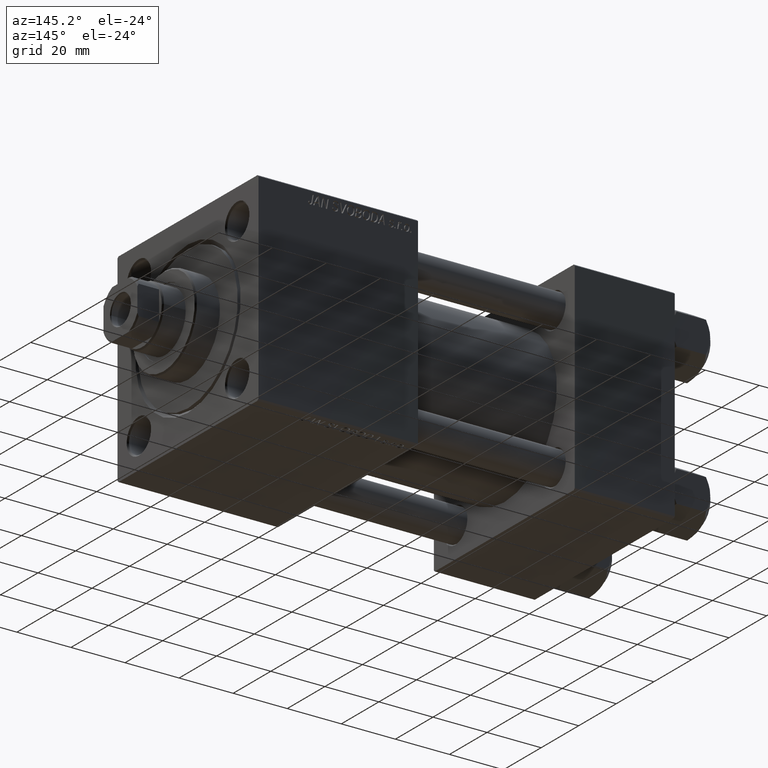
[diagram: clean part render]
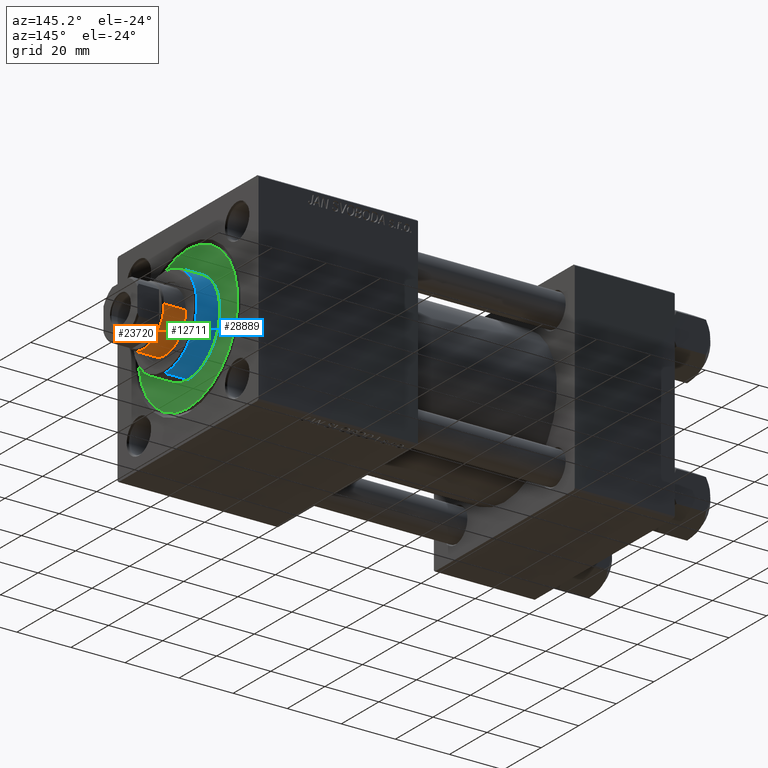
[diagram: same view with three faces highlighted in distinct colors, each labeled with its STEP entity id]
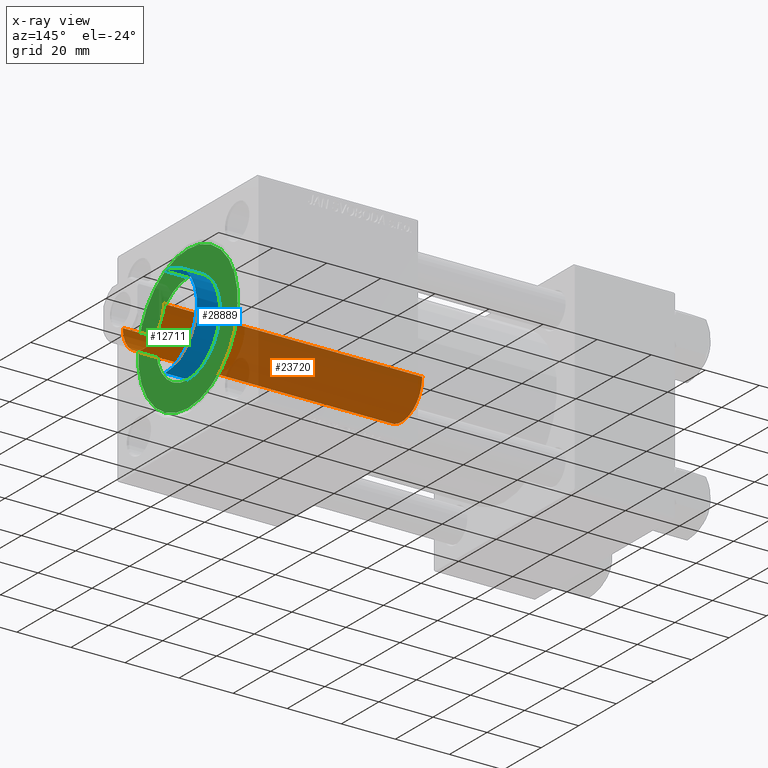
[diagram: x-ray of the same camera — body ghosted, the three highlighted faces saturated]
A machine part, auxiliary view with three faces highlighted in distinct colors.
The next image is the same camera in x-ray (body ghosted, the three faces saturated) — at least one of them is partly hidden behind the body in this view.
Their STEP definitions:

[orange] entity #23720 — the highlighted cylindrical surface (edge-blend (fillet) strip) has radius 11 mm, axis along (-1, 0, 0).
#178 = CARTESIAN_POINT ( 'NONE',  ( 11.00000000000000000, 1.347111479062088405E-15, 133.5000000000000000 ) ) ;
#752 = ORIENTED_EDGE ( 'NONE', *, *, #803, .T. ) ;
#803 = EDGE_CURVE ( 'NONE', #8740, #9536, #11507, .T. ) ;
#2889 = CARTESIAN_POINT ( 'NONE',  ( 0.000000000000000000, 0.000000000000000000, 134.0000000000000000 ) ) ;
#4452 = CIRCLE ( 'NONE', #16622, 11.00000000000000000 ) ;
#5380 = DIRECTION ( 'NONE',  ( 0.000000000000000000, 0.000000000000000000, 1.000000000000000000 ) ) ;
#5625 = DIRECTION ( 'NONE',  ( 1.000000000000000000, 0.000000000000000000, 0.000000000000000000 ) ) ;
#5864 = VERTEX_POINT ( 'NONE', #44850 ) ;
#7151 = CIRCLE ( 'NONE', #35525, 11.00000000000000000 ) ;
#8203 = VECTOR ( 'NONE', #23950, 1000.000000000000000 ) ;
#8740 = VERTEX_POINT ( 'NONE', #178 ) ;
#9536 = VERTEX_POINT ( 'NONE', #15475 ) ;
#11122 = CARTESIAN_POINT ( 'NONE',  ( -11.00000000000000000, 0.000000000000000000, 134.0000000000000000 ) ) ;
#11507 = LINE ( 'NONE', #12512, #8203 ) ;
#11846 = EDGE_CURVE ( 'NONE', #34014, #8740, #4452, .T. ) ;
#12512 = CARTESIAN_POINT ( 'NONE',  ( 11.00000000000000000, 1.347111479062088405E-15, 134.0000000000000000 ) ) ;
#12862 = VECTOR ( 'NONE', #30166, 1000.000000000000000 ) ;
#15475 = CARTESIAN_POINT ( 'NONE',  ( 11.00000000000000000, 1.347111479062088405E-15, 38.00000000000000000 ) ) ;
#16622 = AXIS2_PLACEMENT_3D ( 'NONE', #34493, #41608, #18747 ) ;
#16798 = CARTESIAN_POINT ( 'NONE',  ( 0.000000000000000000, 0.000000000000000000, 38.00000000000000000 ) ) ;
#18747 = DIRECTION ( 'NONE',  ( 1.000000000000000000, 0.000000000000000000, 0.000000000000000000 ) ) ;
#21250 = CARTESIAN_POINT ( 'NONE',  ( -11.00000000000000000, 0.000000000000000000, 133.5000000000000000 ) ) ;
#22388 = EDGE_LOOP ( 'NONE', ( #29962, #752, #33348, #46802 ) ) ;
#23720 = ADVANCED_FACE ( 'NONE', ( #32872 ), #41219, .T. ) ;
#23950 = DIRECTION ( 'NONE',  ( -0.000000000000000000, -0.000000000000000000, -1.000000000000000000 ) ) ;
#26854 = LINE ( 'NONE', #11122, #12862 ) ;
#29962 = ORIENTED_EDGE ( 'NONE', *, *, #11846, .T. ) ;
#30166 = DIRECTION ( 'NONE',  ( -0.000000000000000000, -0.000000000000000000, -1.000000000000000000 ) ) ;
#32872 = FACE_OUTER_BOUND ( 'NONE', #22388, .T. ) ;
#33348 = ORIENTED_EDGE ( 'NONE', *, *, #40327, .T. ) ;
#33369 = DIRECTION ( 'NONE',  ( -1.000000000000000000, 0.000000000000000000, 0.000000000000000000 ) ) ;
#34014 = VERTEX_POINT ( 'NONE', #21250 ) ;
#34493 = CARTESIAN_POINT ( 'NONE',  ( 0.000000000000000000, 0.000000000000000000, 133.5000000000000000 ) ) ;
#35525 = AXIS2_PLACEMENT_3D ( 'NONE', #16798, #5380, #5625 ) ;
#37176 = DIRECTION ( 'NONE',  ( -0.000000000000000000, -0.000000000000000000, -1.000000000000000000 ) ) ;
#40327 = EDGE_CURVE ( 'NONE', #9536, #5864, #7151, .T. ) ;
#40725 = EDGE_CURVE ( 'NONE', #34014, #5864, #26854, .T. ) ;
#41219 = CYLINDRICAL_SURFACE ( 'NONE', #44154, 11.00000000000000000 ) ;
#41608 = DIRECTION ( 'NONE',  ( 0.000000000000000000, 0.000000000000000000, -1.000000000000000000 ) ) ;
#44154 = AXIS2_PLACEMENT_3D ( 'NONE', #2889, #37176, #33369 ) ;
#44850 = CARTESIAN_POINT ( 'NONE',  ( -11.00000000000000000, 0.000000000000000000, 38.00000000000000000 ) ) ;
#46802 = ORIENTED_EDGE ( 'NONE', *, *, #40725, .F. ) ;

[blue] entity #28889 — the highlighted cylindrical surface (partial cylindrical patch) has radius 17 mm, axis along (-1, -0, -0).
#1960 = LINE ( 'NONE', #40785, #14117 ) ;
#2587 = DIRECTION ( 'NONE',  ( -0.000000000000000000, -0.000000000000000000, -1.000000000000000000 ) ) ;
#5206 = CARTESIAN_POINT ( 'NONE',  ( 0.000000000000000000, 0.000000000000000000, 28.69999999999999929 ) ) ;
#5275 = AXIS2_PLACEMENT_3D ( 'NONE', #33330, #14023, #33574 ) ;
#8487 = ORIENTED_EDGE ( 'NONE', *, *, #26802, .F. ) ;
#14023 = DIRECTION ( 'NONE',  ( -0.000000000000000000, -0.000000000000000000, -1.000000000000000000 ) ) ;
#14117 = VECTOR ( 'NONE', #37476, 1000.000000000000000 ) ;
#15652 = EDGE_LOOP ( 'NONE', ( #27792, #48455, #29035, #8487 ) ) ;
#15772 = VECTOR ( 'NONE', #2587, 1000.000000000000000 ) ;
#15982 = VERTEX_POINT ( 'NONE', #37597 ) ;
#16426 = CARTESIAN_POINT ( 'NONE',  ( 17.00000000000000000, 2.081899558550500280E-15, 28.69999999999999929 ) ) ;
#17245 = DIRECTION ( 'NONE',  ( 1.000000000000000000, 0.000000000000000000, 0.000000000000000000 ) ) ;
#17555 = EDGE_CURVE ( 'NONE', #47306, #15982, #37456, .T. ) ;
#17994 = DIRECTION ( 'NONE',  ( 0.000000000000000000, 0.000000000000000000, -1.000000000000000000 ) ) ;
#20693 = DIRECTION ( 'NONE',  ( 1.000000000000000000, 0.000000000000000000, 0.000000000000000000 ) ) ;
#22625 = LINE ( 'NONE', #45980, #15772 ) ;
#24395 = CARTESIAN_POINT ( 'NONE',  ( 17.00000000000000000, 2.081899558550500280E-15, 37.19999999999999574 ) ) ;
#24835 = AXIS2_PLACEMENT_3D ( 'NONE', #32744, #17994, #17245 ) ;
#26802 = EDGE_CURVE ( 'NONE', #33349, #15982, #22625, .T. ) ;
#27792 = ORIENTED_EDGE ( 'NONE', *, *, #31798, .T. ) ;
#28889 = ADVANCED_FACE ( 'NONE', ( #48302 ), #30271, .T. ) ;
#29035 = ORIENTED_EDGE ( 'NONE', *, *, #17555, .T. ) ;
#29302 = CARTESIAN_POINT ( 'NONE',  ( -17.00000000000000000, 0.000000000000000000, 37.19999999999999574 ) ) ;
#29742 = CIRCLE ( 'NONE', #24835, 17.00000000000000000 ) ;
#30271 = CYLINDRICAL_SURFACE ( 'NONE', #5275, 17.00000000000000000 ) ;
#31798 = EDGE_CURVE ( 'NONE', #33349, #43293, #29742, .T. ) ;
#32744 = CARTESIAN_POINT ( 'NONE',  ( 0.000000000000000000, 0.000000000000000000, 37.19999999999999574 ) ) ;
#33330 = CARTESIAN_POINT ( 'NONE',  ( 0.000000000000000000, 0.000000000000000000, 37.69999999999999574 ) ) ;
#33349 = VERTEX_POINT ( 'NONE', #29302 ) ;
#33574 = DIRECTION ( 'NONE',  ( -1.000000000000000000, 0.000000000000000000, 0.000000000000000000 ) ) ;
#36424 = DIRECTION ( 'NONE',  ( 0.000000000000000000, 0.000000000000000000, 1.000000000000000000 ) ) ;
#37456 = CIRCLE ( 'NONE', #45565, 17.00000000000000000 ) ;
#37476 = DIRECTION ( 'NONE',  ( -0.000000000000000000, -0.000000000000000000, -1.000000000000000000 ) ) ;
#37597 = CARTESIAN_POINT ( 'NONE',  ( -17.00000000000000000, 0.000000000000000000, 28.69999999999999929 ) ) ;
#40785 = CARTESIAN_POINT ( 'NONE',  ( 17.00000000000000000, 2.081899558550500280E-15, 37.69999999999999574 ) ) ;
#41893 = EDGE_CURVE ( 'NONE', #43293, #47306, #1960, .T. ) ;
#43293 = VERTEX_POINT ( 'NONE', #24395 ) ;
#45565 = AXIS2_PLACEMENT_3D ( 'NONE', #5206, #36424, #20693 ) ;
#45980 = CARTESIAN_POINT ( 'NONE',  ( -17.00000000000000000, 0.000000000000000000, 37.69999999999999574 ) ) ;
#47306 = VERTEX_POINT ( 'NONE', #16426 ) ;
#48302 = FACE_OUTER_BOUND ( 'NONE', #15652, .T. ) ;
#48455 = ORIENTED_EDGE ( 'NONE', *, *, #41893, .T. ) ;

[green] entity #12711 — the highlighted planar face has unit normal (1, 0, 0).
#735 = AXIS2_PLACEMENT_3D ( 'NONE', #7967, #23444, #19139 ) ;
#2581 = CARTESIAN_POINT ( 'NONE',  ( 0.000000000000000000, 0.000000000000000000, 28.69999999999999929 ) ) ;
#4161 = DIRECTION ( 'NONE',  ( 0.000000000000000000, 0.000000000000000000, 1.000000000000000000 ) ) ;
#5206 = CARTESIAN_POINT ( 'NONE',  ( 0.000000000000000000, 0.000000000000000000, 28.69999999999999929 ) ) ;
#5456 = VERTEX_POINT ( 'NONE', #25633 ) ;
#7967 = CARTESIAN_POINT ( 'NONE',  ( 0.000000000000000000, 0.000000000000000000, 28.69999999999999929 ) ) ;
#8483 = VERTEX_POINT ( 'NONE', #27965 ) ;
#11274 = CIRCLE ( 'NONE', #735, 26.50000000000000355 ) ;
#11774 = EDGE_LOOP ( 'NONE', ( #29327, #47153 ) ) ;
#12025 = PLANE ( 'NONE',  #41367 ) ;
#12711 = ADVANCED_FACE ( 'NONE', ( #20151, #13014 ), #12025, .T. ) ;
#13014 = FACE_OUTER_BOUND ( 'NONE', #11774, .T. ) ;
#13243 = DIRECTION ( 'NONE',  ( 1.000000000000000000, 0.000000000000000000, 0.000000000000000000 ) ) ;
#14358 = DIRECTION ( 'NONE',  ( 0.000000000000000000, 0.000000000000000000, 1.000000000000000000 ) ) ;
#15239 = EDGE_CURVE ( 'NONE', #5456, #8483, #24412, .T. ) ;
#15982 = VERTEX_POINT ( 'NONE', #37597 ) ;
#16426 = CARTESIAN_POINT ( 'NONE',  ( 17.00000000000000000, 2.081899558550500280E-15, 28.69999999999999929 ) ) ;
#17555 = EDGE_CURVE ( 'NONE', #47306, #15982, #37456, .T. ) ;
#18061 = DIRECTION ( 'NONE',  ( 0.000000000000000000, 0.000000000000000000, 1.000000000000000000 ) ) ;
#19139 = DIRECTION ( 'NONE',  ( 1.000000000000000000, 0.000000000000000000, 0.000000000000000000 ) ) ;
#19838 = AXIS2_PLACEMENT_3D ( 'NONE', #2581, #18061, #13243 ) ;
#20151 = FACE_BOUND ( 'NONE', #21915, .T. ) ;
#20693 = DIRECTION ( 'NONE',  ( 1.000000000000000000, 0.000000000000000000, 0.000000000000000000 ) ) ;
#21740 = CARTESIAN_POINT ( 'NONE',  ( 0.000000000000000000, 0.000000000000000000, 28.69999999999999929 ) ) ;
#21915 = EDGE_LOOP ( 'NONE', ( #26405, #39195 ) ) ;
#23444 = DIRECTION ( 'NONE',  ( 0.000000000000000000, 0.000000000000000000, 1.000000000000000000 ) ) ;
#24083 = EDGE_CURVE ( 'NONE', #15982, #47306, #41729, .T. ) ;
#24412 = CIRCLE ( 'NONE', #33336, 26.50000000000000355 ) ;
#25633 = CARTESIAN_POINT ( 'NONE',  ( -26.50000000000000355, 0.000000000000000000, 28.69999999999999929 ) ) ;
#26405 = ORIENTED_EDGE ( 'NONE', *, *, #24083, .F. ) ;
#27965 = CARTESIAN_POINT ( 'NONE',  ( 26.50000000000000355, 3.245314017740486554E-15, 28.69999999999999929 ) ) ;
#28516 = CARTESIAN_POINT ( 'NONE',  ( 0.000000000000000000, 0.000000000000000000, 28.69999999999999929 ) ) ;
#29327 = ORIENTED_EDGE ( 'NONE', *, *, #15239, .T. ) ;
#33336 = AXIS2_PLACEMENT_3D ( 'NONE', #21740, #14358, #49134 ) ;
#36424 = DIRECTION ( 'NONE',  ( 0.000000000000000000, 0.000000000000000000, 1.000000000000000000 ) ) ;
#37456 = CIRCLE ( 'NONE', #45565, 17.00000000000000000 ) ;
#37597 = CARTESIAN_POINT ( 'NONE',  ( -17.00000000000000000, 0.000000000000000000, 28.69999999999999929 ) ) ;
#38318 = EDGE_CURVE ( 'NONE', #8483, #5456, #11274, .T. ) ;
#39195 = ORIENTED_EDGE ( 'NONE', *, *, #17555, .F. ) ;
#41367 = AXIS2_PLACEMENT_3D ( 'NONE', #28516, #4161, #48804 ) ;
#41729 = CIRCLE ( 'NONE', #19838, 17.00000000000000000 ) ;
#45565 = AXIS2_PLACEMENT_3D ( 'NONE', #5206, #36424, #20693 ) ;
#47153 = ORIENTED_EDGE ( 'NONE', *, *, #38318, .T. ) ;
#47306 = VERTEX_POINT ( 'NONE', #16426 ) ;
#48804 = DIRECTION ( 'NONE',  ( 1.000000000000000000, 0.000000000000000000, -0.000000000000000000 ) ) ;
#49134 = DIRECTION ( 'NONE',  ( 1.000000000000000000, 0.000000000000000000, 0.000000000000000000 ) ) ;